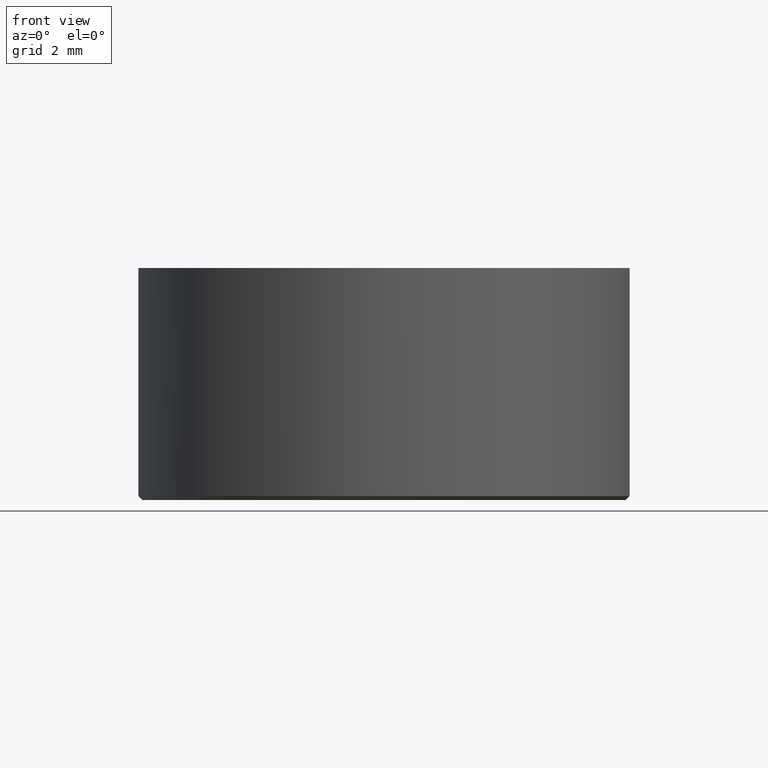
[diagram: clean part render]
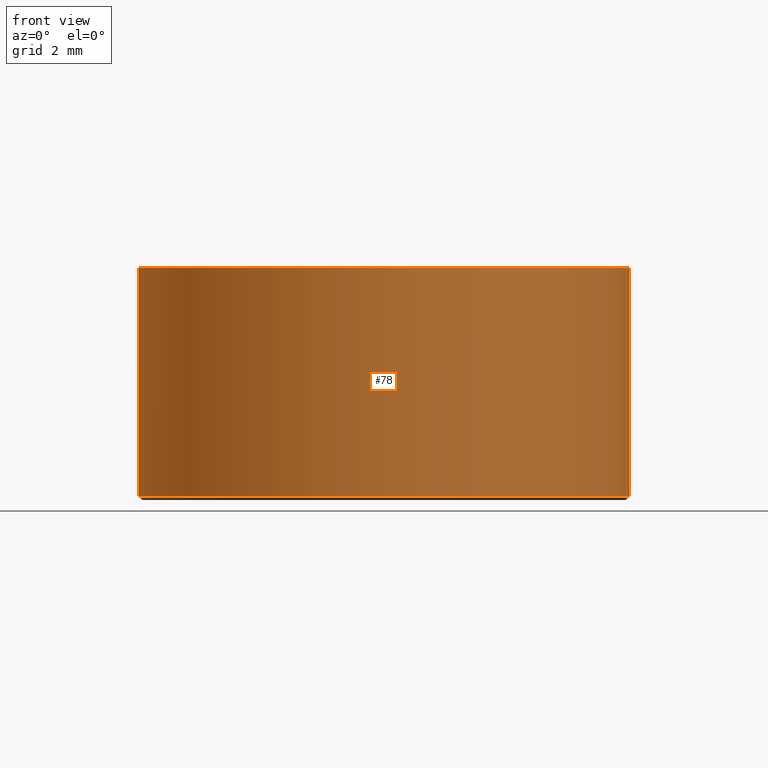
[diagram: same view with one face highlighted and labeled with its STEP entity id]
A machine part, front view. The second image highlights one B-rep face of the part: STEP entity #78.
In plain terms, the highlighted cylindrical surface (partial cylindrical patch) has radius 6.35 mm, axis along (0, 0, -1).
Its self-contained STEP definition (entity closure, byte-faithful):
#19 = CARTESIAN_POINT ( 'NONE',  ( 0.2084906702816482500, -0.003652676017679375900, -0.08978774678871552500 ) ) ;
#21 = EDGE_CURVE ( 'NONE', #55, #35, #76, .T. ) ;
#35 = VERTEX_POINT ( 'NONE', #19 ) ;
#38 = VERTEX_POINT ( 'NONE', #142 ) ;
#40 = EDGE_CURVE ( 'NONE', #56, #38, #140, .T. ) ;
#55 = VERTEX_POINT ( 'NONE', #194 ) ;
#56 = VERTEX_POINT ( 'NONE', #193 ) ;
#73 = DIRECTION ( 'NONE',  ( 0.0000000000000000000, 0.0000000000000000000, -1.000000000000000000 ) ) ;
#74 = VECTOR ( 'NONE', #73, 39.37007874015748100 ) ;
#75 = CARTESIAN_POINT ( 'NONE',  ( 0.2084906702816482500, -0.003652676017679345500, 0.1424957177782135400 ) ) ;
#76 = LINE ( 'NONE', #75, #74 ) ;
#77 = EDGE_CURVE ( 'NONE', #38, #35, #191, .T. ) ;
#78 = ADVANCED_FACE ( 'NONE', ( #192 ), #225, .T. ) ;
#79 = EDGE_LOOP ( 'NONE', ( #80, #81, #83, #84 ) ) ;
#80 = ORIENTED_EDGE ( 'NONE', *, *, #21, .F. ) ;
#81 = ORIENTED_EDGE ( 'NONE', *, *, #82, .F. ) ;
#82 = EDGE_CURVE ( 'NONE', #56, #55, #220, .T. ) ;
#83 = ORIENTED_EDGE ( 'NONE', *, *, #40, .T. ) ;
#84 = ORIENTED_EDGE ( 'NONE', *, *, #77, .T. ) ;
#137 = DIRECTION ( 'NONE',  ( 0.0000000000000000000, 0.0000000000000000000, -1.000000000000000000 ) ) ;
#138 = VECTOR ( 'NONE', #137, 39.37007874015748100 ) ;
#139 = CARTESIAN_POINT ( 'NONE',  ( -0.2915093297183519700, -0.003652676017679375900, 0.1424957177782135400 ) ) ;
#140 = LINE ( 'NONE', #139, #138 ) ;
#142 = CARTESIAN_POINT ( 'NONE',  ( -0.2915093297183519700, -0.003652676017679345500, -0.08978774678871552500 ) ) ;
#187 = DIRECTION ( 'NONE',  ( 1.000000000000000000, 0.0000000000000000000, 0.0000000000000000000 ) ) ;
#188 = DIRECTION ( 'NONE',  ( 0.0000000000000000000, 0.0000000000000000000, 1.000000000000000000 ) ) ;
#189 = CARTESIAN_POINT ( 'NONE',  ( -0.04150932971835186200, -0.003652676017679375900, -0.08978774678871552500 ) ) ;
#190 = AXIS2_PLACEMENT_3D ( 'NONE', #189, #188, #187 ) ;
#191 = CIRCLE ( 'NONE', #190, 0.2500000000000001100 ) ;
#192 = FACE_OUTER_BOUND ( 'NONE', #79, .T. ) ;
#193 = CARTESIAN_POINT ( 'NONE',  ( -0.2915093297183519700, -0.003652676017679375900, 0.1424957177782135400 ) ) ;
#194 = CARTESIAN_POINT ( 'NONE',  ( 0.2084906702816482500, -0.003652676017679345500, 0.1424957177782135400 ) ) ;
#217 = DIRECTION ( 'NONE',  ( 1.000000000000000000, 0.0000000000000000000, 0.0000000000000000000 ) ) ;
#218 = DIRECTION ( 'NONE',  ( 0.0000000000000000000, 0.0000000000000000000, 1.000000000000000000 ) ) ;
#219 = AXIS2_PLACEMENT_3D ( 'NONE', #226, #218, #217 ) ;
#220 = CIRCLE ( 'NONE', #219, 0.2500000000000001100 ) ;
#222 = DIRECTION ( 'NONE',  ( -1.000000000000000000, 0.0000000000000000000, 0.0000000000000000000 ) ) ;
#223 = DIRECTION ( 'NONE',  ( 0.0000000000000000000, 0.0000000000000000000, -1.000000000000000000 ) ) ;
#224 = AXIS2_PLACEMENT_3D ( 'NONE', #227, #223, #222 ) ;
#225 = CYLINDRICAL_SURFACE ( 'NONE', #224, 0.2500000000000001100 ) ;
#226 = CARTESIAN_POINT ( 'NONE',  ( -0.04150932971835186200, -0.003652676017679375900, 0.1424957177782135400 ) ) ;
#227 = CARTESIAN_POINT ( 'NONE',  ( -0.04150932971835186200, -0.003652676017679375900, 0.1424957177782135400 ) ) ;